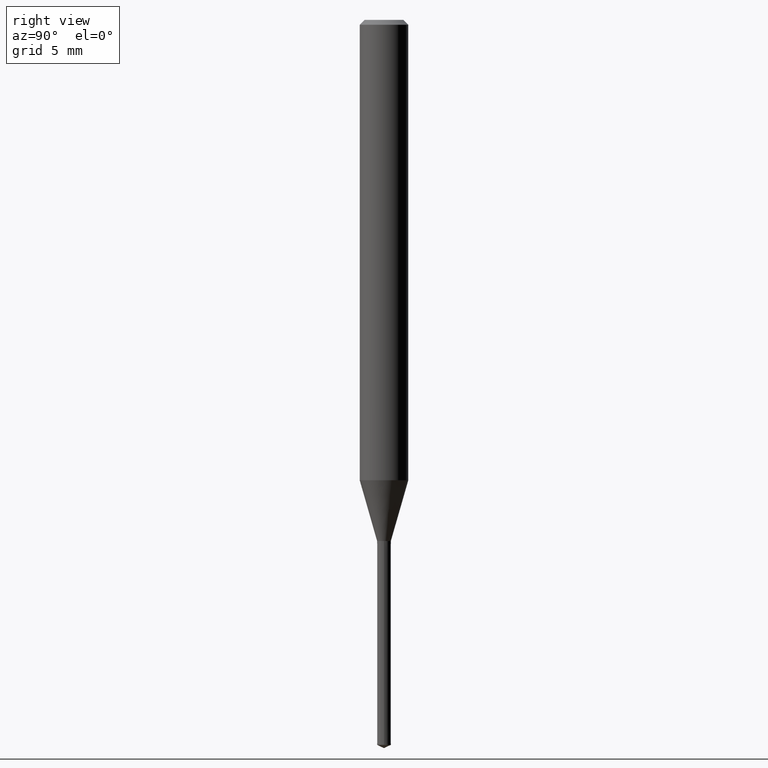
[diagram: clean part render]
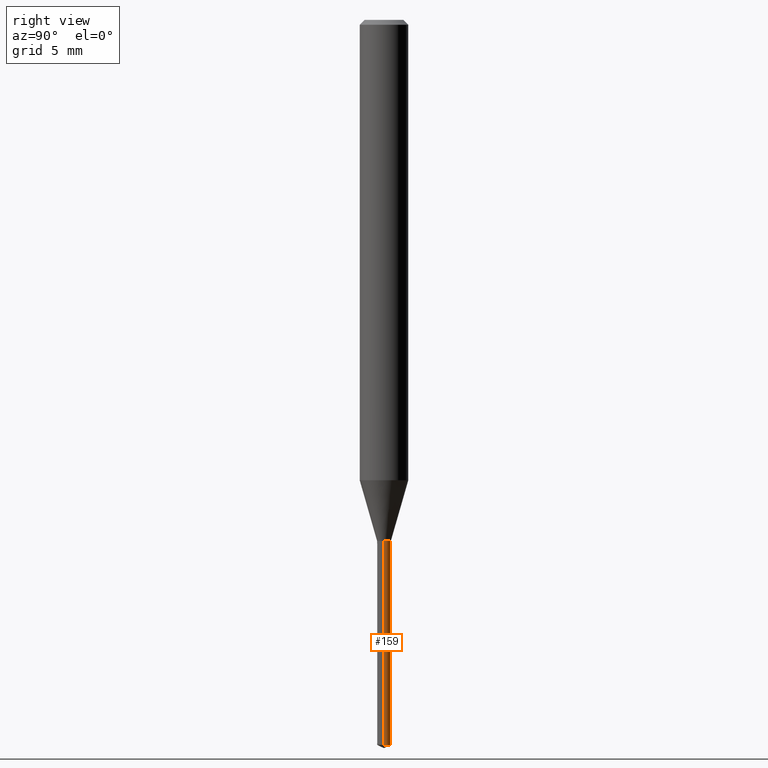
[diagram: same view with one face highlighted and labeled with its STEP entity id]
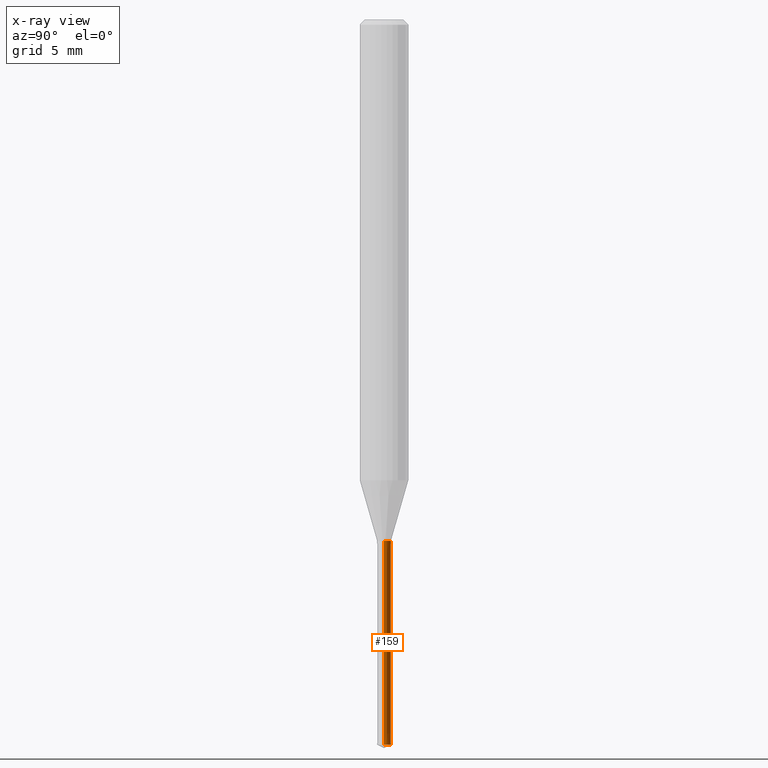
[diagram: x-ray of the same camera — body ghosted, the highlighted face saturated]
A machine part, right view. The second image highlights one B-rep face of the part: STEP entity #159.
The next image is the same camera in x-ray: the body ghosted, the highlighted face saturated — about 0% of this face is hidden behind the body in this view.
In plain terms, the highlighted conical surface has half-angle 0.005 deg.
Its self-contained STEP definition (entity closure, byte-faithful):
#91=EDGE_CURVE('',#105,#117,#226,.T.);
#105=VERTEX_POINT('',#242);
#117=VERTEX_POINT('',#256);
#119=VERTEX_POINT('',#258);
#125=EDGE_CURVE('',#119,#105,#265,.T.);
#159=ADVANCED_FACE('',(#303),#304,.T.);
#195=EDGE_CURVE('',#119,#199,#344,.T.);
#199=VERTEX_POINT('',#348);
#203=EDGE_CURVE('',#117,#199,#352,.T.);
#226=CIRCLE('',#369,0.425);
#242=CARTESIAN_POINT('',(-0.425,0.0,-44.80181925));
#256=CARTESIAN_POINT('',(0.425,5.2045770037451E-017,-44.80181925));
#258=CARTESIAN_POINT('',(-0.426,0.0,-32.2));
#265=LINE('',#414,#415);
#303=FACE_OUTER_BOUND('',#462,.T.);
#304=CONICAL_SURFACE('',#463,0.4255,7.93536217321163E-005);
#344=CIRCLE('',#518,0.426);
#348=CARTESIAN_POINT('',(0.426,5.21682306728333E-017,-32.2));
#352=LINE('',#529,#530);
#369=AXIS2_PLACEMENT_3D('',#535,#536,#537);
#414=CARTESIAN_POINT('',(-0.4255,-5.21070003551421E-017,-38.500909625));
#415=VECTOR('',#587,1.0);
#462=EDGE_LOOP('',(#636,#637,#638,#639));
#463=AXIS2_PLACEMENT_3D('',#640,#641,#642);
#518=AXIS2_PLACEMENT_3D('',#690,#691,#692);
#529=CARTESIAN_POINT('',(0.4255,5.21070003551421E-017,-38.500909625));
#530=VECTOR('',#694,1.0);
#535=CARTESIAN_POINT('',(0.0,0.0,-44.80181925));
#536=DIRECTION('',(0.0,0.0,-1.0));
#537=DIRECTION('',(-1.0,0.0,0.0));
#587=DIRECTION('',(7.93536216488347E-005,9.717694926998E-021,-0.999999996851501));
#636=ORIENTED_EDGE('',*,*,#125,.F.);
#637=ORIENTED_EDGE('',*,*,#195,.T.);
#638=ORIENTED_EDGE('',*,*,#203,.F.);
#639=ORIENTED_EDGE('',*,*,#91,.F.);
#640=CARTESIAN_POINT('',(0.0,0.0,-38.500909625));
#641=DIRECTION('',(-0.0,-0.0,1.0));
#642=DIRECTION('',(-1.0,0.0,0.0));
#690=CARTESIAN_POINT('',(0.0,0.0,-32.2));
#691=DIRECTION('',(0.0,0.0,-1.0));
#692=DIRECTION('',(-1.0,0.0,0.0));
#694=DIRECTION('',(7.93536216488347E-005,9.717694926998E-021,0.999999996851501));